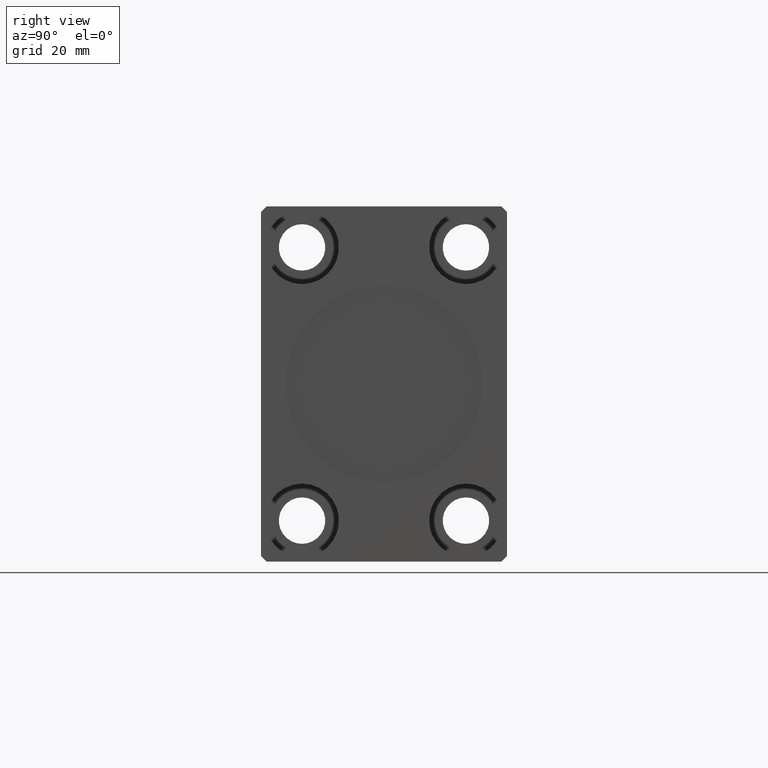
[diagram: clean part render]
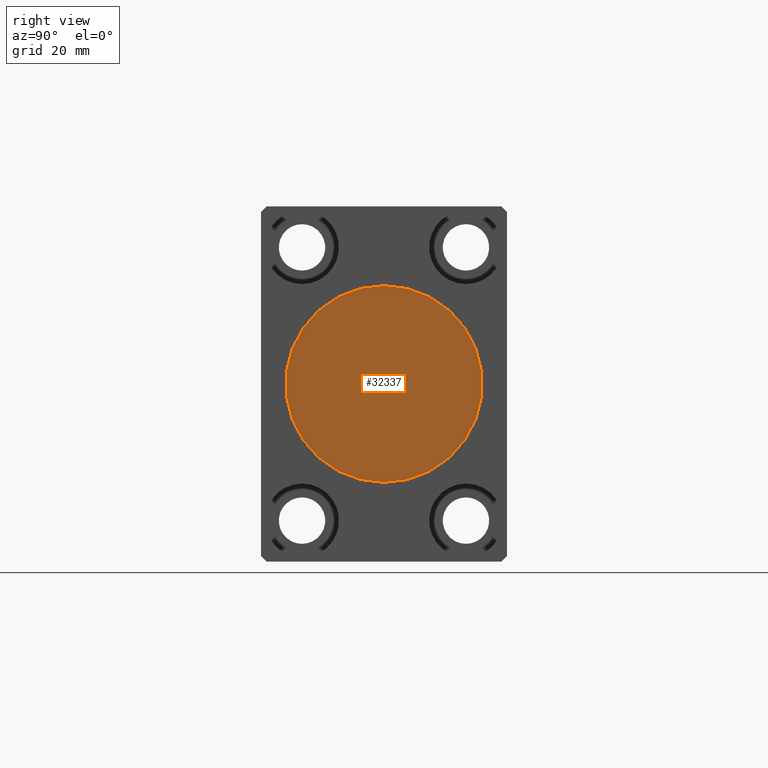
[diagram: same view with one face highlighted and labeled with its STEP entity id]
A machine part, right view. The second image highlights one B-rep face of the part: STEP entity #32337.
In plain terms, the highlighted planar face has unit normal (1, 0, 0).
Its self-contained STEP definition (entity closure, byte-faithful):
#219 = CARTESIAN_POINT ( 'NONE',  ( 107.7999999999999972, 0.000000000000000000, 0.000000000000000000 ) ) ;
#351 = VERTEX_POINT ( 'NONE', #5023 ) ;
#546 = CIRCLE ( 'NONE', #10813, 18.00000000000000000 ) ;
#1085 = EDGE_LOOP ( 'NONE', ( #13847, #6937 ) ) ;
#5023 = CARTESIAN_POINT ( 'NONE',  ( 107.7999999999999972, 0.000000000000000000, -18.00000000000000000 ) ) ;
#5957 = DIRECTION ( 'NONE',  ( 0.000000000000000000, 0.000000000000000000, -1.000000000000000000 ) ) ;
#6051 = EDGE_CURVE ( 'NONE', #351, #27227, #22136, .T. ) ;
#6937 = ORIENTED_EDGE ( 'NONE', *, *, #27075, .T. ) ;
#9357 = CARTESIAN_POINT ( 'NONE',  ( 107.7999999999999972, 0.000000000000000000, 0.000000000000000000 ) ) ;
#9569 = DIRECTION ( 'NONE',  ( 1.000000000000000000, 0.000000000000000000, 0.000000000000000000 ) ) ;
#9782 = DIRECTION ( 'NONE',  ( 0.000000000000000000, 0.000000000000000000, -1.000000000000000000 ) ) ;
#10813 = AXIS2_PLACEMENT_3D ( 'NONE', #219, #13514, #19951 ) ;
#12176 = DIRECTION ( 'NONE',  ( 1.000000000000000000, 0.000000000000000000, 0.000000000000000000 ) ) ;
#13214 = AXIS2_PLACEMENT_3D ( 'NONE', #9357, #9569, #9782 ) ;
#13514 = DIRECTION ( 'NONE',  ( 1.000000000000000000, 0.000000000000000000, 0.000000000000000000 ) ) ;
#13847 = ORIENTED_EDGE ( 'NONE', *, *, #6051, .T. ) ;
#16428 = CARTESIAN_POINT ( 'NONE',  ( 107.7999999999999972, 2.204364238465235428E-15, 18.00000000000000000 ) ) ;
#19951 = DIRECTION ( 'NONE',  ( 0.000000000000000000, 0.000000000000000000, -1.000000000000000000 ) ) ;
#22136 = CIRCLE ( 'NONE', #13214, 18.00000000000000000 ) ;
#25703 = CARTESIAN_POINT ( 'NONE',  ( 107.7999999999999972, 0.000000000000000000, 0.000000000000000000 ) ) ;
#27075 = EDGE_CURVE ( 'NONE', #27227, #351, #546, .T. ) ;
#27227 = VERTEX_POINT ( 'NONE', #16428 ) ;
#31675 = AXIS2_PLACEMENT_3D ( 'NONE', #25703, #12176, #5957 ) ;
#32337 = ADVANCED_FACE ( 'NONE', ( #41607 ), #34954, .T. ) ;
#34954 = PLANE ( 'NONE',  #31675 ) ;
#41607 = FACE_OUTER_BOUND ( 'NONE', #1085, .T. ) ;